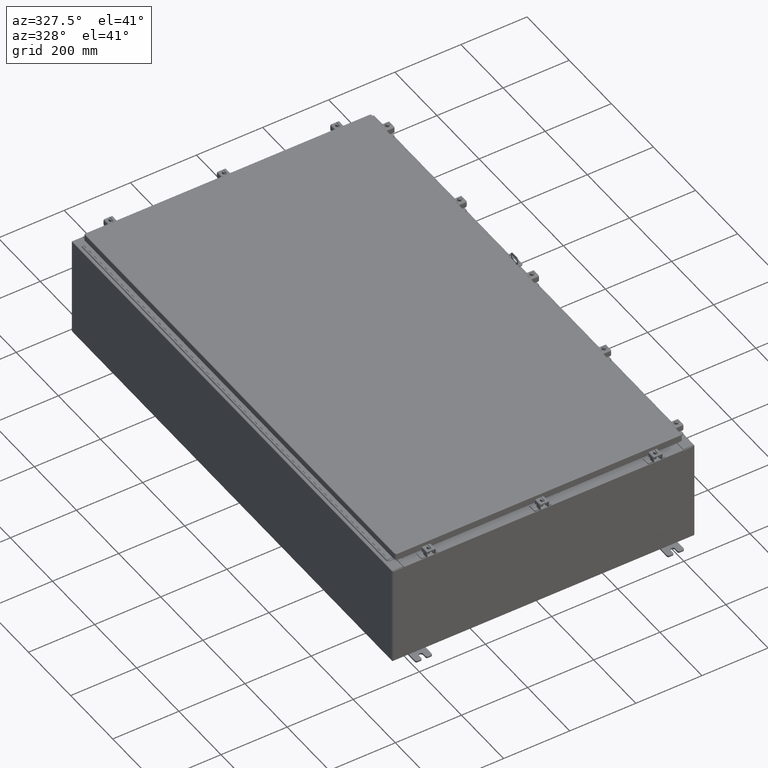
[diagram: clean part render]
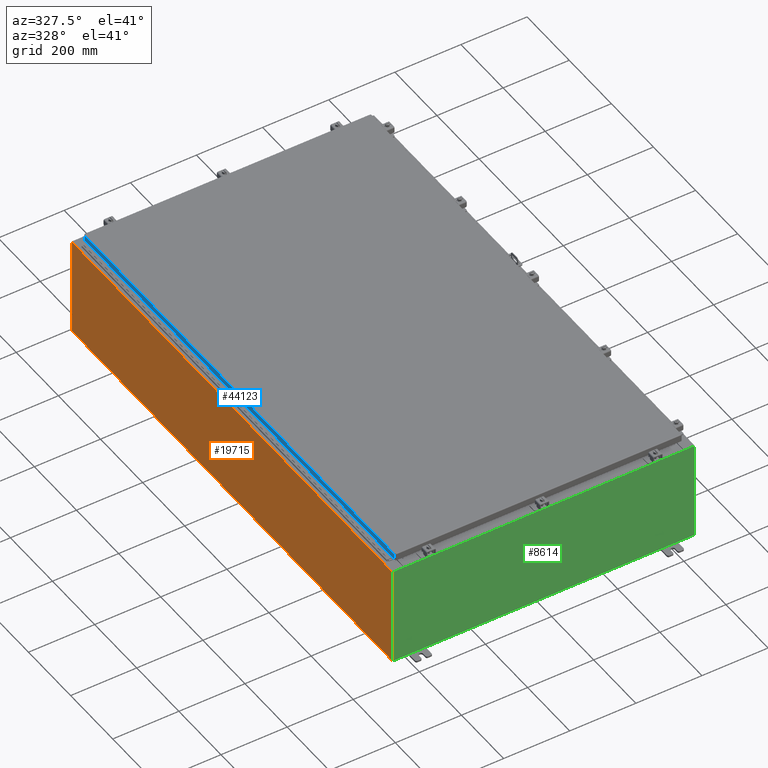
[diagram: same view with three faces highlighted in distinct colors, each labeled with its STEP entity id]
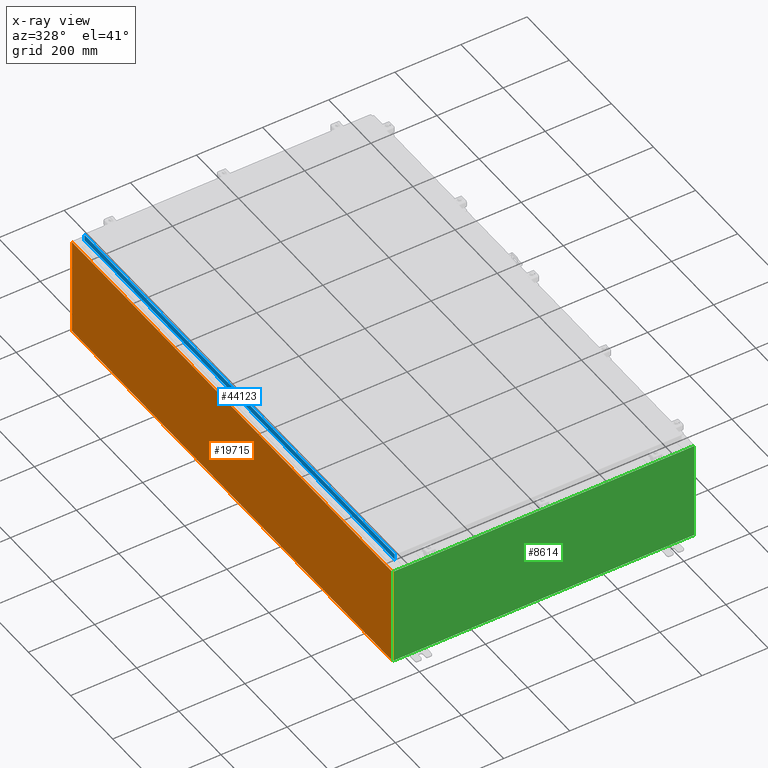
[diagram: x-ray of the same camera — body ghosted, the three highlighted faces saturated]
A machine part, auxiliary view with three faces highlighted in distinct colors.
The next image is the same camera in x-ray (body ghosted, the three faces saturated) — at least one of them is partly hidden behind the body in this view.
Their STEP definitions:

[orange] entity #19715 — the highlighted planar face has unit normal (1, 0, 0).
#151 = VERTEX_POINT ( 'NONE', #60851 ) ;
#707 = CARTESIAN_POINT ( 'NONE',  ( -18.00000000000004300, 29.92529999999998900, 11.83760000000000200 ) ) ;
#1020 = EDGE_CURVE ( 'NONE', #7605, #151, #15674, .T. ) ;
#3305 = VERTEX_POINT ( 'NONE', #51148 ) ;
#4413 = EDGE_LOOP ( 'NONE', ( #52130, #41609, #40217, #39998 ) ) ;
#7605 = VERTEX_POINT ( 'NONE', #707 ) ;
#7976 = VECTOR ( 'NONE', #25730, 39.37007874015748100 ) ;
#10080 = EDGE_CURVE ( 'NONE', #3305, #7605, #37876, .T. ) ;
#10315 = CARTESIAN_POINT ( 'NONE',  ( -18.00000000000000400, -29.92530000000001100, -6.293710784286997500E-014 ) ) ;
#10831 = DIRECTION ( 'NONE',  ( 0.0000000000000000000, 1.000000000000000000, 0.0000000000000000000 ) ) ;
#15674 = LINE ( 'NONE', #45533, #54448 ) ;
#16424 = DIRECTION ( 'NONE',  ( 3.482016343714355500E-015, 0.0000000000000000000, -1.000000000000000000 ) ) ;
#16811 = PLANE ( 'NONE',  #53525 ) ;
#19715 = ADVANCED_FACE ( 'NONE', ( #23092 ), #16811, .F. ) ;
#20855 = CARTESIAN_POINT ( 'NONE',  ( -18.00000000000000400, 29.92529999999998900, 0.01299999999999984700 ) ) ;
#21888 = DIRECTION ( 'NONE',  ( 1.000000000000000000, 0.0000000000000000000, 3.482016343714355100E-015 ) ) ;
#23092 = FACE_OUTER_BOUND ( 'NONE', #4413, .T. ) ;
#24921 = VECTOR ( 'NONE', #10831, 39.37007874015748100 ) ;
#25730 = DIRECTION ( 'NONE',  ( -0.0000000000000000000, 1.000000000000000000, -0.0000000000000000000 ) ) ;
#27139 = LINE ( 'NONE', #10315, #52977 ) ;
#30169 = CARTESIAN_POINT ( 'NONE',  ( -18.00000000000004300, -29.92530000000001800, 11.83760000000000200 ) ) ;
#33379 = CARTESIAN_POINT ( 'NONE',  ( -18.00000000000000400, -29.92530000000001100, 0.01299999999999984700 ) ) ;
#33436 = EDGE_CURVE ( 'NONE', #58309, #151, #59733, .T. ) ;
#37876 = LINE ( 'NONE', #30169, #24921 ) ;
#39998 = ORIENTED_EDGE ( 'NONE', *, *, #50323, .T. ) ;
#40217 = ORIENTED_EDGE ( 'NONE', *, *, #33436, .F. ) ;
#41609 = ORIENTED_EDGE ( 'NONE', *, *, #1020, .T. ) ;
#44307 = DIRECTION ( 'NONE',  ( -3.482016343714355500E-015, 0.0000000000000000000, 1.000000000000000000 ) ) ;
#45533 = CARTESIAN_POINT ( 'NONE',  ( -18.00000000000000400, 29.92529999999998900, -6.293710784286997500E-014 ) ) ;
#50323 = EDGE_CURVE ( 'NONE', #58309, #3305, #27139, .T. ) ;
#50982 = CARTESIAN_POINT ( 'NONE',  ( -18.00000000000000400, 0.0000000000000000000, -6.293710784286997500E-014 ) ) ;
#51148 = CARTESIAN_POINT ( 'NONE',  ( -18.00000000000004300, -29.92530000000001100, 11.83760000000000200 ) ) ;
#52130 = ORIENTED_EDGE ( 'NONE', *, *, #10080, .T. ) ;
#52977 = VECTOR ( 'NONE', #44307, 39.37007874015748100 ) ;
#53525 = AXIS2_PLACEMENT_3D ( 'NONE', #50982, #21888, #55904 ) ;
#54448 = VECTOR ( 'NONE', #16424, 39.37007874015748100 ) ;
#55904 = DIRECTION ( 'NONE',  ( 3.482016343714355100E-015, 0.0000000000000000000, -1.000000000000000000 ) ) ;
#58309 = VERTEX_POINT ( 'NONE', #33379 ) ;
#59733 = LINE ( 'NONE', #20855, #7976 ) ;
#60851 = CARTESIAN_POINT ( 'NONE',  ( -18.00000000000000400, 29.92529999999998600, 0.01299999999999984700 ) ) ;

[blue] entity #44123 — the highlighted planar face has unit normal (1, -0, -0).
#1649 = VERTEX_POINT ( 'NONE', #36597 ) ;
#3253 = DIRECTION ( 'NONE',  ( -3.034122441942816100E-015, 6.982962677686265900E-015, -1.000000000000000000 ) ) ;
#5337 = EDGE_CURVE ( 'NONE', #1649, #57929, #28587, .T. ) ;
#9768 = ORIENTED_EDGE ( 'NONE', *, *, #50142, .F. ) ;
#11262 = CARTESIAN_POINT ( 'NONE',  ( -17.07799999999999600, 29.00515786437626500, -0.08769999999999567000 ) ) ;
#13385 = PLANE ( 'NONE',  #16554 ) ;
#14093 = DIRECTION ( 'NONE',  ( -3.034122441942816100E-015, 6.982962677686265900E-015, -1.000000000000000000 ) ) ;
#16554 = AXIS2_PLACEMENT_3D ( 'NONE', #18492, #52450, #23366 ) ;
#18492 = CARTESIAN_POINT ( 'NONE',  ( -17.07799999999999600, 1.282862446849468500E-015, 5.207755671951099000E-014 ) ) ;
#18872 = VERTEX_POINT ( 'NONE', #44308 ) ;
#19490 = ORIENTED_EDGE ( 'NONE', *, *, #35225, .T. ) ;
#23366 = DIRECTION ( 'NONE',  ( -3.034122441942816500E-015, 0.0000000000000000000, -1.000000000000000000 ) ) ;
#25244 = VECTOR ( 'NONE', #3253, 39.37007874015748100 ) ;
#26424 = VECTOR ( 'NONE', #33293, 39.37007874015748100 ) ;
#26759 = LINE ( 'NONE', #27673, #25244 ) ;
#27673 = CARTESIAN_POINT ( 'NONE',  ( -17.07799999999999600, 29.00515786437626500, 2.546194915468487600E-013 ) ) ;
#28587 = LINE ( 'NONE', #48073, #54431 ) ;
#29310 = EDGE_CURVE ( 'NONE', #46064, #1649, #36320, .T. ) ;
#33293 = DIRECTION ( 'NONE',  ( 7.511783855542072300E-017, 1.000000000000000000, 1.220664876525586700E-016 ) ) ;
#34785 = VECTOR ( 'NONE', #48581, 39.37007874015748100 ) ;
#35225 = EDGE_CURVE ( 'NONE', #46064, #18872, #26759, .T. ) ;
#36320 = LINE ( 'NONE', #38877, #34785 ) ;
#36597 = CARTESIAN_POINT ( 'NONE',  ( -17.07799999999999900, -29.00515786437626500, -0.08769999999999787700 ) ) ;
#38877 = CARTESIAN_POINT ( 'NONE',  ( -17.07799999999999900, -29.09400000000000100, -0.08770000000000004200 ) ) ;
#44123 = ADVANCED_FACE ( 'NONE', ( #59537 ), #13385, .F. ) ;
#44308 = CARTESIAN_POINT ( 'NONE',  ( -17.07799999999999600, 29.00515786437626500, -0.7949999999999926000 ) ) ;
#46064 = VERTEX_POINT ( 'NONE', #11262 ) ;
#48073 = CARTESIAN_POINT ( 'NONE',  ( -17.07799999999999900, -29.00515786437626500, -0.07469999999999976700 ) ) ;
#48581 = DIRECTION ( 'NONE',  ( -7.511783855542057500E-017, -1.000000000000000000, -7.511783855542072300E-017 ) ) ;
#50142 = EDGE_CURVE ( 'NONE', #57929, #18872, #62185, .T. ) ;
#52450 = DIRECTION ( 'NONE',  ( 1.000000000000000000, -7.511783855542035400E-017, -3.034122441942816500E-015 ) ) ;
#54431 = VECTOR ( 'NONE', #14093, 39.37007874015748100 ) ;
#55159 = ORIENTED_EDGE ( 'NONE', *, *, #29310, .F. ) ;
#57704 = ORIENTED_EDGE ( 'NONE', *, *, #5337, .F. ) ;
#57929 = VERTEX_POINT ( 'NONE', #59378 ) ;
#58706 = EDGE_LOOP ( 'NONE', ( #55159, #19490, #9768, #57704 ) ) ;
#59378 = CARTESIAN_POINT ( 'NONE',  ( -17.07800000000000300, -29.00515786437626200, -0.7949999999999996000 ) ) ;
#59537 = FACE_OUTER_BOUND ( 'NONE', #58706, .T. ) ;
#62185 = LINE ( 'NONE', #62432, #26424 ) ;
#62432 = CARTESIAN_POINT ( 'NONE',  ( -17.07800000000000300, -29.09400000000000100, -0.7949999999999997100 ) ) ;

[green] entity #8614 — the highlighted planar face has unit normal (-0, 1, -0).
#314 = CARTESIAN_POINT ( 'NONE',  ( 16.63720000000000400, 0.0000000000000000000, 0.0000000000000000000 ) ) ;
#392 = EDGE_CURVE ( 'NONE', #50254, #35125, #62162, .T. ) ;
#674 = DIRECTION ( 'NONE',  ( -8.681145560799821800E-014, 0.0000000000000000000, -1.000000000000000000 ) ) ;
#1126 = EDGE_CURVE ( 'NONE', #54967, #62826, #35475, .T. ) ;
#5043 = CARTESIAN_POINT ( 'NONE',  ( -16.63720000000000000, 3.756290991288361700E-016, 5.912299999999999200 ) ) ;
#5622 = LINE ( 'NONE', #25449, #55786 ) ;
#5729 = CARTESIAN_POINT ( 'NONE',  ( 16.63720000000000400, 0.0000000000000000000, 5.874949999999999200 ) ) ;
#5737 = VECTOR ( 'NONE', #53836, 39.37007874015748100 ) ;
#5869 = PLANE ( 'NONE',  #49339 ) ;
#5919 = CARTESIAN_POINT ( 'NONE',  ( -16.67455000000000000, 0.0000000000000000000, 5.925299999999999100 ) ) ;
#6684 = CARTESIAN_POINT ( 'NONE',  ( -16.63720000000000000, -0.0000000000000000000, 5.874949999999999200 ) ) ;
#6941 = ORIENTED_EDGE ( 'NONE', *, *, #1126, .F. ) ;
#7610 = DIRECTION ( 'NONE',  ( -0.0000000000000000000, 1.000000000000000000, -0.0000000000000000000 ) ) ;
#8406 = FACE_OUTER_BOUND ( 'NONE', #36423, .T. ) ;
#8614 = ADVANCED_FACE ( 'NONE', ( #8406 ), #5869, .F. ) ;
#9482 = ORIENTED_EDGE ( 'NONE', *, *, #24600, .F. ) ;
#10487 = CARTESIAN_POINT ( 'NONE',  ( 16.67455000000000700, 0.0000000000000000000, 5.925300000000000000 ) ) ;
#10577 = VERTEX_POINT ( 'NONE', #48562 ) ;
#13179 = LINE ( 'NONE', #14081, #37556 ) ;
#13555 = DIRECTION ( 'NONE',  ( 0.0000000000000000000, 0.0000000000000000000, -1.000000000000000000 ) ) ;
#13936 = ORIENTED_EDGE ( 'NONE', *, *, #19486, .F. ) ;
#14006 = EDGE_CURVE ( 'NONE', #36433, #39038, #53886, .T. ) ;
#14081 = CARTESIAN_POINT ( 'NONE',  ( -17.92529999999999600, 0.0000000000000000000, -5.925300000000000000 ) ) ;
#14460 = CARTESIAN_POINT ( 'NONE',  ( -16.63720000000000000, 3.756290991288361700E-016, 5.912299999999999200 ) ) ;
#15155 = VERTEX_POINT ( 'NONE', #26280 ) ;
#15312 = DIRECTION ( 'NONE',  ( 1.000000000000000000, 0.0000000000000000000, 3.048036009064577000E-017 ) ) ;
#16683 = VECTOR ( 'NONE', #15312, 39.37007874015748100 ) ;
#17233 = AXIS2_PLACEMENT_3D ( 'NONE', #51226, #22143, #56143 ) ;
#18189 = LINE ( 'NONE', #54190, #16683 ) ;
#18447 = CARTESIAN_POINT ( 'NONE',  ( -16.63720000000000000, -0.0000000000000000000, 0.0000000000000000000 ) ) ;
#18630 = LINE ( 'NONE', #314, #5737 ) ;
#19486 = EDGE_CURVE ( 'NONE', #39959, #54967, #59661, .T. ) ;
#20411 = EDGE_CURVE ( 'NONE', #10577, #55837, #46559, .T. ) ;
#20586 = VECTOR ( 'NONE', #48619, 39.37007874015748100 ) ;
#21331 = EDGE_CURVE ( 'NONE', #38911, #15155, #47298, .T. ) ;
#22143 = DIRECTION ( 'NONE',  ( -0.0000000000000000000, 1.000000000000000000, -0.0000000000000000000 ) ) ;
#23848 = EDGE_CURVE ( 'NONE', #50254, #38911, #47509, .T. ) ;
#24512 = DIRECTION ( 'NONE',  ( -0.0000000000000000000, -0.0000000000000000000, 1.000000000000000000 ) ) ;
#24600 = EDGE_CURVE ( 'NONE', #62826, #35125, #18630, .T. ) ;
#25449 = CARTESIAN_POINT ( 'NONE',  ( -16.67455000000000000, -0.0000000000000000000, 0.0000000000000000000 ) ) ;
#25771 = VERTEX_POINT ( 'NONE', #5919 ) ;
#26032 = ORIENTED_EDGE ( 'NONE', *, *, #21331, .F. ) ;
#26280 = CARTESIAN_POINT ( 'NONE',  ( -16.67455000000000000, 0.0000000000000000000, 5.874949999999999200 ) ) ;
#27567 = ORIENTED_EDGE ( 'NONE', *, *, #60234, .T. ) ;
#27627 = ORIENTED_EDGE ( 'NONE', *, *, #54185, .T. ) ;
#28896 = CARTESIAN_POINT ( 'NONE',  ( -17.92529999999999600, 0.0000000000000000000, 5.925299999999999100 ) ) ;
#29414 = CARTESIAN_POINT ( 'NONE',  ( -17.92529999999999600, 0.0000000000000000000, 5.925299999999999100 ) ) ;
#29671 = AXIS2_PLACEMENT_3D ( 'NONE', #36766, #7610, #41613 ) ;
#30281 = DIRECTION ( 'NONE',  ( 0.0000000000000000000, -0.0000000000000000000, -1.000000000000000000 ) ) ;
#32155 = CARTESIAN_POINT ( 'NONE',  ( 17.92530000000000400, 0.0000000000000000000, -5.925300000000000000 ) ) ;
#32395 = ORIENTED_EDGE ( 'NONE', *, *, #20411, .T. ) ;
#33064 = CARTESIAN_POINT ( 'NONE',  ( -17.92529999999999600, 0.0000000000000000000, 5.925299999999999100 ) ) ;
#33097 = VECTOR ( 'NONE', #13555, 39.37007874015748100 ) ;
#33361 = ORIENTED_EDGE ( 'NONE', *, *, #392, .T. ) ;
#33530 = LINE ( 'NONE', #28896, #20586 ) ;
#35125 = VERTEX_POINT ( 'NONE', #51053 ) ;
#35206 = DIRECTION ( 'NONE',  ( 0.0000000000000000000, 0.0000000000000000000, -1.000000000000000000 ) ) ;
#35315 = CARTESIAN_POINT ( 'NONE',  ( 16.67455000000000400, 0.0000000000000000000, 5.874949999999999200 ) ) ;
#35475 = CIRCLE ( 'NONE', #17233, 0.01867499999999949400 ) ;
#36423 = EDGE_LOOP ( 'NONE', ( #54910, #26032, #40347, #33361, #9482, #6941, #13936, #56200, #52074, #27567, #32395, #27627 ) ) ;
#36433 = VERTEX_POINT ( 'NONE', #49166 ) ;
#36766 = CARTESIAN_POINT ( 'NONE',  ( -16.65587499999999800, 0.0000000000000000000, 5.874949999999999200 ) ) ;
#37556 = VECTOR ( 'NONE', #38349, 39.37007874015748100 ) ;
#38349 = DIRECTION ( 'NONE',  ( -1.000000000000000000, -0.0000000000000000000, -0.0000000000000000000 ) ) ;
#38911 = VERTEX_POINT ( 'NONE', #6684 ) ;
#39038 = VERTEX_POINT ( 'NONE', #32155 ) ;
#39959 = VERTEX_POINT ( 'NONE', #10487 ) ;
#40347 = ORIENTED_EDGE ( 'NONE', *, *, #23848, .F. ) ;
#41613 = DIRECTION ( 'NONE',  ( 0.0000000000000000000, 0.0000000000000000000, -1.000000000000000000 ) ) ;
#44709 = CARTESIAN_POINT ( 'NONE',  ( 0.0000000000000000000, 0.0000000000000000000, 0.0000000000000000000 ) ) ;
#46559 = LINE ( 'NONE', #29414, #58018 ) ;
#47298 = CIRCLE ( 'NONE', #29671, 0.01867499999999949400 ) ;
#47509 = LINE ( 'NONE', #18447, #33097 ) ;
#48562 = CARTESIAN_POINT ( 'NONE',  ( -17.92529999999999600, 0.0000000000000000000, -5.925300000000000000 ) ) ;
#48619 = DIRECTION ( 'NONE',  ( 1.000000000000000000, 0.0000000000000000000, 3.048036009064577000E-017 ) ) ;
#49166 = CARTESIAN_POINT ( 'NONE',  ( 17.92530000000000400, 0.0000000000000000000, 5.925300000000000000 ) ) ;
#49174 = VECTOR ( 'NONE', #58252, 39.37007874015748100 ) ;
#49339 = AXIS2_PLACEMENT_3D ( 'NONE', #44709, #59429, #30281 ) ;
#50254 = VERTEX_POINT ( 'NONE', #5043 ) ;
#51053 = CARTESIAN_POINT ( 'NONE',  ( 16.63720000000000400, 0.0000000000000000000, 5.912299999999999200 ) ) ;
#51226 = CARTESIAN_POINT ( 'NONE',  ( 16.65587500000000500, 0.0000000000000000000, 5.874949999999999200 ) ) ;
#52074 = ORIENTED_EDGE ( 'NONE', *, *, #14006, .T. ) ;
#52322 = VECTOR ( 'NONE', #35206, 39.37007874015748100 ) ;
#53836 = DIRECTION ( 'NONE',  ( 0.0000000000000000000, 0.0000000000000000000, 1.000000000000000000 ) ) ;
#53886 = LINE ( 'NONE', #59419, #52322 ) ;
#54185 = EDGE_CURVE ( 'NONE', #55837, #25771, #33530, .T. ) ;
#54190 = CARTESIAN_POINT ( 'NONE',  ( -17.92529999999999600, 0.0000000000000000000, 5.925299999999999100 ) ) ;
#54910 = ORIENTED_EDGE ( 'NONE', *, *, #61112, .F. ) ;
#54949 = EDGE_CURVE ( 'NONE', #39959, #36433, #18189, .T. ) ;
#54967 = VERTEX_POINT ( 'NONE', #35315 ) ;
#55786 = VECTOR ( 'NONE', #59498, 39.37007874015748100 ) ;
#55837 = VERTEX_POINT ( 'NONE', #33064 ) ;
#56143 = DIRECTION ( 'NONE',  ( 0.0000000000000000000, 0.0000000000000000000, -1.000000000000000000 ) ) ;
#56200 = ORIENTED_EDGE ( 'NONE', *, *, #54949, .T. ) ;
#58018 = VECTOR ( 'NONE', #24512, 39.37007874015748100 ) ;
#58252 = DIRECTION ( 'NONE',  ( 1.000000000000000000, 0.0000000000000000000, 0.0000000000000000000 ) ) ;
#58936 = CARTESIAN_POINT ( 'NONE',  ( 16.67454999999949500, -0.0000000000000000000, -1.447541957108302900E-012 ) ) ;
#59419 = CARTESIAN_POINT ( 'NONE',  ( 17.92530000000000400, 0.0000000000000000000, 5.925300000000000000 ) ) ;
#59429 = DIRECTION ( 'NONE',  ( 0.0000000000000000000, -1.000000000000000000, 0.0000000000000000000 ) ) ;
#59498 = DIRECTION ( 'NONE',  ( 0.0000000000000000000, 0.0000000000000000000, 1.000000000000000000 ) ) ;
#59661 = LINE ( 'NONE', #58936, #61182 ) ;
#60234 = EDGE_CURVE ( 'NONE', #39038, #10577, #13179, .T. ) ;
#61112 = EDGE_CURVE ( 'NONE', #15155, #25771, #5622, .T. ) ;
#61182 = VECTOR ( 'NONE', #674, 39.37007874015748100 ) ;
#62162 = LINE ( 'NONE', #14460, #49174 ) ;
#62826 = VERTEX_POINT ( 'NONE', #5729 ) ;